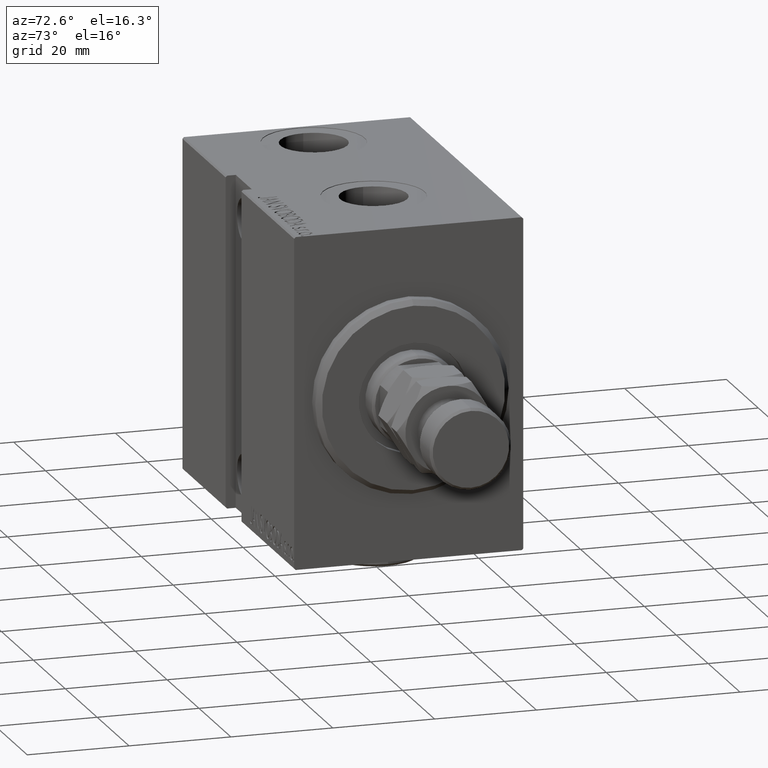
[diagram: clean part render]
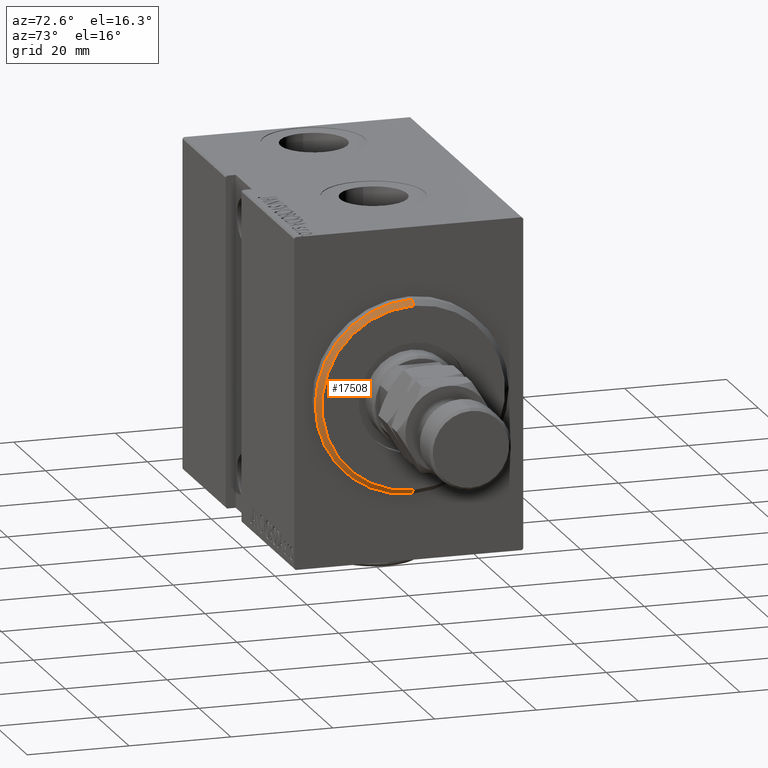
[diagram: same view with one face highlighted and labeled with its STEP entity id]
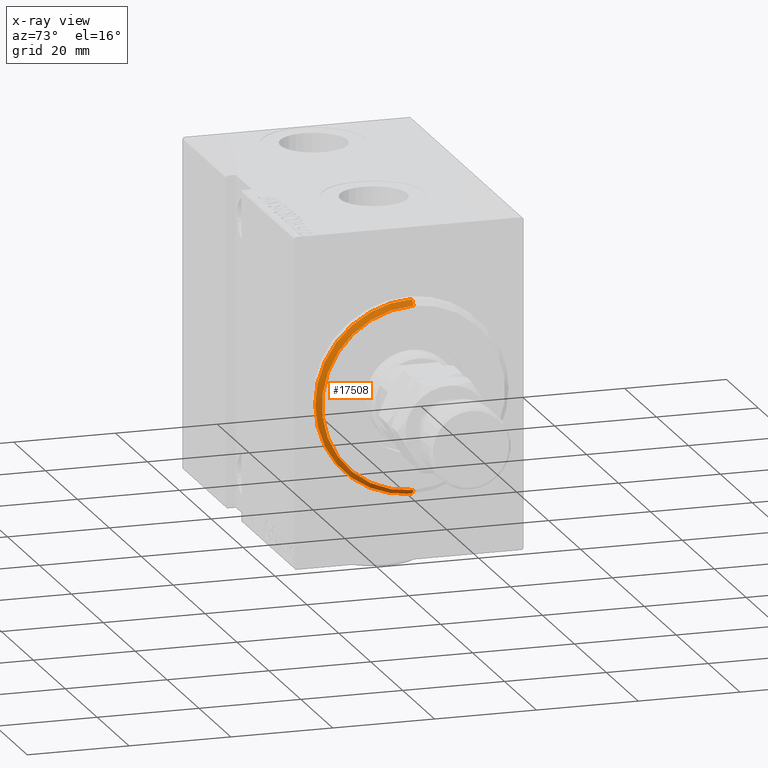
[diagram: x-ray of the same camera — body ghosted, the highlighted face saturated]
A machine part, auxiliary view. The second image highlights one B-rep face of the part: STEP entity #17508.
The next image is the same camera in x-ray: the body ghosted, the highlighted face saturated — about 0% of this face is hidden behind the body in this view.
In plain terms, the highlighted conical surface has half-angle 45 deg.
Its self-contained STEP definition (entity closure, byte-faithful):
#2065 = EDGE_CURVE ( 'NONE', #25300, #40876, #43994, .T. ) ;
#3305 = DIRECTION ( 'NONE',  ( 0.000000000000000000, 0.000000000000000000, 1.000000000000000000 ) ) ;
#4104 = AXIS2_PLACEMENT_3D ( 'NONE', #20067, #37895, #29420 ) ;
#6403 = VECTOR ( 'NONE', #38828, 1000.000000000000000 ) ;
#6852 = VERTEX_POINT ( 'NONE', #10942 ) ;
#7170 = EDGE_CURVE ( 'NONE', #6852, #43511, #13093, .T. ) ;
#8668 = AXIS2_PLACEMENT_3D ( 'NONE', #9854, #26969, #20492 ) ;
#9598 = AXIS2_PLACEMENT_3D ( 'NONE', #30667, #13056, #3305 ) ;
#9750 = CARTESIAN_POINT ( 'NONE',  ( 1.999999999999992228, 0.000000000000000000, 19.00000000000000000 ) ) ;
#9854 = CARTESIAN_POINT ( 'NONE',  ( 1.999999999999992228, 0.000000000000000000, 0.000000000000000000 ) ) ;
#10942 = CARTESIAN_POINT ( 'NONE',  ( 1.999999999999992228, 2.326828918379970970E-15, -19.00000000000000000 ) ) ;
#12887 = LINE ( 'NONE', #27243, #21903 ) ;
#13056 = DIRECTION ( 'NONE',  ( -1.000000000000000000, 0.000000000000000000, 0.000000000000000000 ) ) ;
#13093 = CIRCLE ( 'NONE', #8668, 19.00000000000000000 ) ;
#16206 = ORIENTED_EDGE ( 'NONE', *, *, #35042, .T. ) ;
#16543 = FACE_OUTER_BOUND ( 'NONE', #37808, .T. ) ;
#17508 = ADVANCED_FACE ( 'NONE', ( #16543 ), #45062, .T. ) ;
#20067 = CARTESIAN_POINT ( 'NONE',  ( 3.000000000000000000, 0.000000000000000000, 0.000000000000000000 ) ) ;
#20412 = CARTESIAN_POINT ( 'NONE',  ( 3.000000000000000000, 0.000000000000000000, 17.99999999999999645 ) ) ;
#20492 = DIRECTION ( 'NONE',  ( 0.000000000000000000, 0.000000000000000000, -1.000000000000000000 ) ) ;
#21903 = VECTOR ( 'NONE', #23534, 1000.000000000000000 ) ;
#23534 = DIRECTION ( 'NONE',  ( -0.7071067811865487940, 0.000000000000000000, 0.7071067811865463515 ) ) ;
#25300 = VERTEX_POINT ( 'NONE', #20412 ) ;
#25408 = ORIENTED_EDGE ( 'NONE', *, *, #7170, .F. ) ;
#26311 = ORIENTED_EDGE ( 'NONE', *, *, #32148, .F. ) ;
#26969 = DIRECTION ( 'NONE',  ( -1.000000000000000000, 0.000000000000000000, 0.000000000000000000 ) ) ;
#27243 = CARTESIAN_POINT ( 'NONE',  ( 3.000000000000000000, 0.000000000000000000, 17.99999999999999645 ) ) ;
#29420 = DIRECTION ( 'NONE',  ( 0.000000000000000000, 0.000000000000000000, -1.000000000000000000 ) ) ;
#30667 = CARTESIAN_POINT ( 'NONE',  ( 3.000000000000000000, 0.000000000000000000, 0.000000000000000000 ) ) ;
#32148 = EDGE_CURVE ( 'NONE', #40876, #6852, #42515, .T. ) ;
#35042 = EDGE_CURVE ( 'NONE', #25300, #43511, #12887, .T. ) ;
#36434 = CARTESIAN_POINT ( 'NONE',  ( 3.000000000000000000, 2.204364238465235033E-15, -17.99999999999999645 ) ) ;
#37476 = CARTESIAN_POINT ( 'NONE',  ( 3.000000000000000000, 2.265596578422603002E-15, -17.99999999999999645 ) ) ;
#37808 = EDGE_LOOP ( 'NONE', ( #26311, #42408, #16206, #25408 ) ) ;
#37895 = DIRECTION ( 'NONE',  ( 1.000000000000000000, -0.000000000000000000, 0.000000000000000000 ) ) ;
#38828 = DIRECTION ( 'NONE',  ( -0.7071067811865487940, 8.659560562354918067E-17, -0.7071067811865463515 ) ) ;
#40876 = VERTEX_POINT ( 'NONE', #37476 ) ;
#42408 = ORIENTED_EDGE ( 'NONE', *, *, #2065, .F. ) ;
#42515 = LINE ( 'NONE', #36434, #6403 ) ;
#43511 = VERTEX_POINT ( 'NONE', #9750 ) ;
#43994 = CIRCLE ( 'NONE', #4104, 17.99999999999999645 ) ;
#45062 = CONICAL_SURFACE ( 'NONE', #9598, 17.99999999999999645, 0.7853981633974466137 ) ;